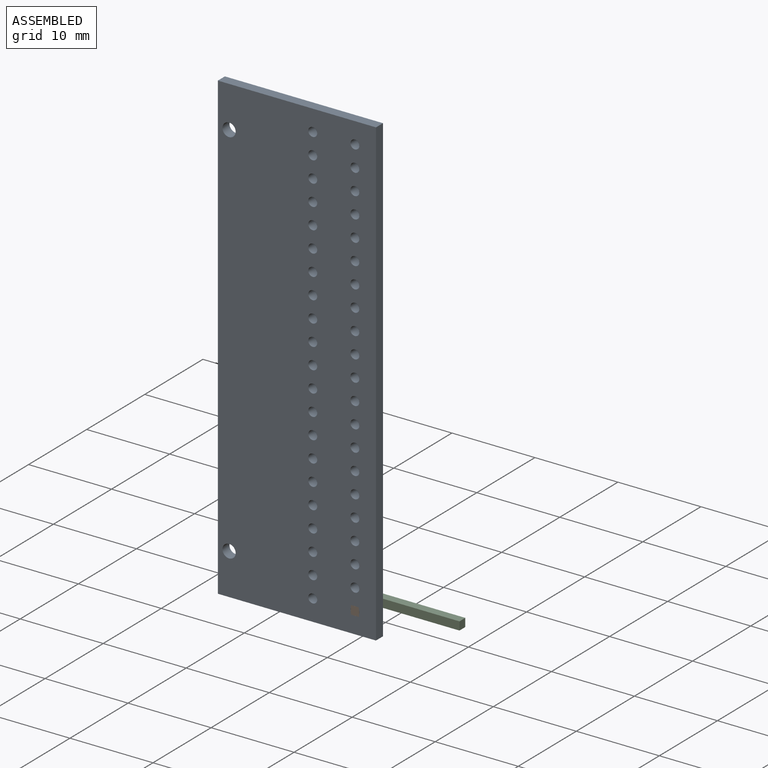
[diagram: assembled view]
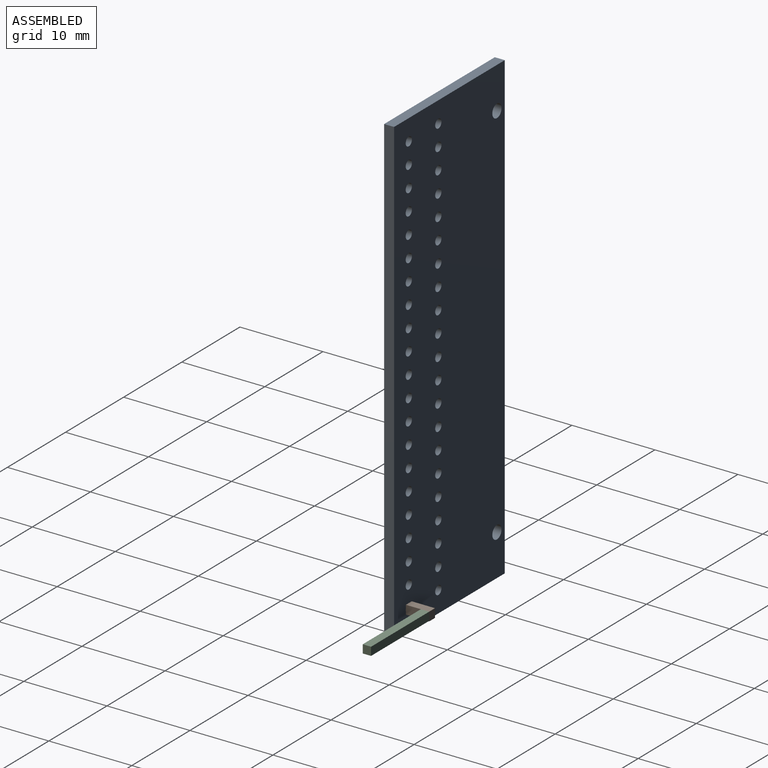
[diagram: assembled view, second angle]
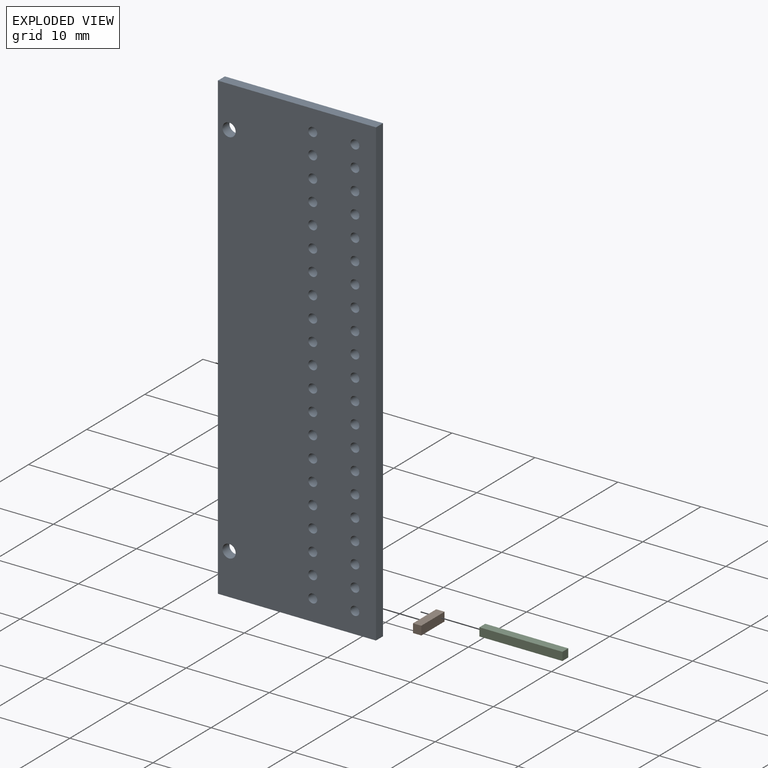
[diagram: exploded view]
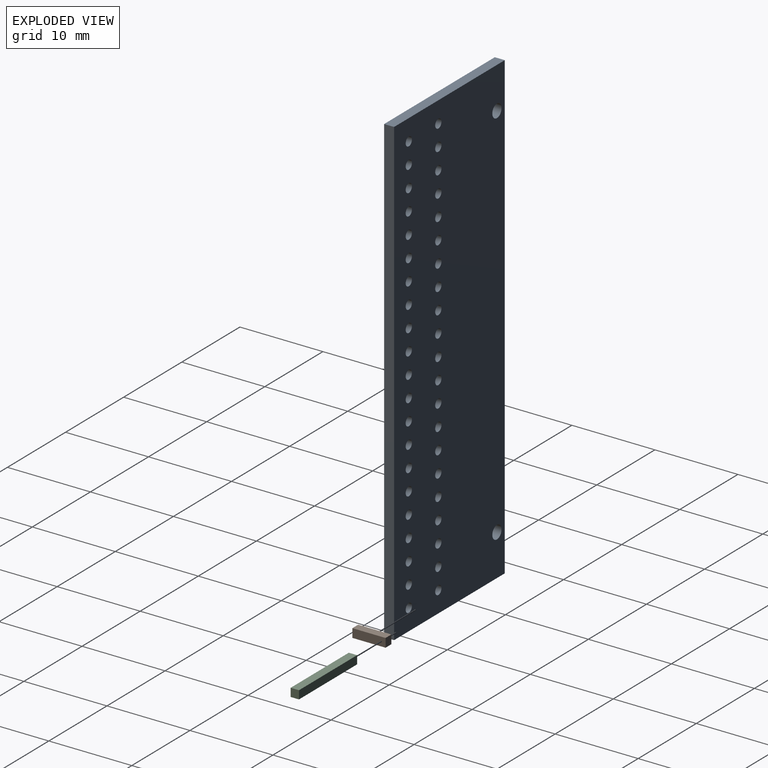
[diagram: exploded view, second angle]
ASSEMBLY  parts=3 mates=2
PART A: 50 faces, bbox 19.1x1.2x55.9 mm
  f0: plane 19.05x1.2mm, normal (0,0,1), area 22.9mm2, adj f1,f14,f48,f49
  f1: plane 55.88x1.2mm, normal (-1,0,0), area 67.1mm2, adj f0,f2,f48,f49
  f2: plane 19.05x1.2mm, normal (0,0,-1), area 22.9mm2, adj f1,f14,f48,f49
  f3: cylinder r=0.54mm len=1.2mm, axis (0,1,0), area 4mm2, adj f48,f49
  f4: cylinder r=0.54mm len=1.2mm, axis (0,1,0), area 4mm2, adj f48,f49
  f5: cylinder r=0.54mm len=1.2mm, axis (0,1,0), area 4mm2, adj f48,f49
  f6: cylinder r=0.54mm len=1.2mm, axis (0,1,0), area 4mm2, adj f48,f49
  f7: cylinder r=0.54mm len=1.2mm, axis (0,1,0), area 4mm2, adj f48,f49
  f8: cylinder r=0.54mm len=1.2mm, axis (0,1,0), area 4mm2, adj f48,f49
  f9: cylinder r=0.54mm len=1.2mm, axis (0,1,0), area 4mm2, adj f48,f49
  f10: cylinder r=0.54mm len=1.2mm, axis (0,1,0), area 4mm2, adj f48,f49
  f11: cylinder r=0.54mm len=1.2mm, axis (0,1,0), area 4mm2, adj f48,f49
  f12: cylinder r=0.54mm len=1.2mm, axis (0,1,0), area 4mm2, adj f48,f49
  f13: cylinder r=0.79mm len=1.59mm, axis (0,1,0), area 6mm2, adj f48,f49
  f14: plane 55.88x1.2mm, normal (1,0,0), area 67.1mm2, adj f0,f2,f48,f49
  f15: cylinder r=0.79mm len=1.59mm, axis (0,1,0), area 6mm2, adj f48,f49
  f16: cylinder r=0.54mm len=1.2mm, axis (0,1,0), area 4mm2, adj f48,f49
  f17: cylinder r=0.54mm len=1.2mm, axis (0,1,0), area 4mm2, adj f48,f49
  f18: cylinder r=0.54mm len=1.2mm, axis (0,1,0), area 4mm2, adj f48,f49
  f19: cylinder r=0.54mm len=1.2mm, axis (0,1,0), area 4mm2, adj f48,f49
  f20: cylinder r=0.54mm len=1.2mm, axis (0,1,0), area 4mm2, adj f48,f49
  f21: cylinder r=0.54mm len=1.2mm, axis (0,1,0), area 4mm2, adj f48,f49
  f22: cylinder r=0.54mm len=1.2mm, axis (0,1,0), area 4mm2, adj f48,f49
  f23: cylinder r=0.54mm len=1.2mm, axis (0,1,0), area 4mm2, adj f48,f49
  f24: cylinder r=0.54mm len=1.2mm, axis (0,1,0), area 4mm2, adj f48,f49
  f25: cylinder r=0.54mm len=1.2mm, axis (0,1,0), area 4mm2, adj f48,f49
  f26: cylinder r=0.54mm len=1.2mm, axis (0,1,0), area 4mm2, adj f48,f49
  f27: cylinder r=0.54mm len=1.2mm, axis (0,1,0), area 4mm2, adj f48,f49
  f28: cylinder r=0.54mm len=1.2mm, axis (0,1,0), area 4mm2, adj f48,f49
  f29: cylinder r=0.54mm len=1.2mm, axis (0,1,0), area 4mm2, adj f48,f49
  f30: cylinder r=0.54mm len=1.2mm, axis (0,1,0), area 4mm2, adj f48,f49
  f31: cylinder r=0.54mm len=1.2mm, axis (0,1,0), area 4mm2, adj f48,f49
  f32: cylinder r=0.54mm len=1.2mm, axis (0,1,0), area 4mm2, adj f48,f49
  f33: cylinder r=0.54mm len=1.2mm, axis (0,1,0), area 4mm2, adj f48,f49
  f34: cylinder r=0.54mm len=1.2mm, axis (0,1,0), area 4mm2, adj f48,f49
  f35: cylinder r=0.54mm len=1.2mm, axis (0,1,0), area 4mm2, adj f48,f49
  f36: cylinder r=0.54mm len=1.2mm, axis (0,1,0), area 4mm2, adj f48,f49
  f37: cylinder r=0.54mm len=1.2mm, axis (0,1,0), area 4mm2, adj f48,f49
  f38: cylinder r=0.54mm len=1.2mm, axis (0,1,0), area 4mm2, adj f48,f49
  f39: cylinder r=0.54mm len=1.2mm, axis (0,1,0), area 4mm2, adj f48,f49
  f40: cylinder r=0.54mm len=1.2mm, axis (0,1,0), area 4mm2, adj f48,f49
  f41: cylinder r=0.54mm len=1.2mm, axis (0,1,0), area 4mm2, adj f48,f49
  f42: cylinder r=0.54mm len=1.2mm, axis (0,1,0), area 4mm2, adj f48,f49
  f43: cylinder r=0.54mm len=1.2mm, axis (0,1,0), area 4mm2, adj f48,f49
  f44: cylinder r=0.54mm len=1.2mm, axis (0,1,0), area 4mm2, adj f48,f49
  f45: cylinder r=0.54mm len=1.2mm, axis (0,1,0), area 4mm2, adj f48,f49
  f46: cylinder r=0.54mm len=1.2mm, axis (0,1,0), area 4mm2, adj f48,f49
  f47: cylinder r=0.54mm len=1.2mm, axis (0,1,0), area 4mm2, adj f48,f49
  f48: plane 55.88x19.05mm, normal (0,-1,0), area 1022.6mm2, adj f0,f1,f2,f3,f4,f5,f6,f7
  f49: plane 55.88x19.05mm, normal (0,1,0), area 1022.6mm2, adj f0,f1,f2,f3,f4,f5,f6,f7
PART B: 6 faces, bbox 1x1.1x4 mm
  f0: plane 4x1mm, normal (0,-1,0), area 4mm2, adj f1,f3,f4,f5
  f1: plane 4x1.06mm, normal (1,0,0), area 4.2mm2, adj f0,f2,f4,f5
  f2: plane 4x1mm, normal (0,1,0), area 4mm2, adj f1,f3,f4,f5
  f3: plane 4x1.06mm, normal (-1,0,0), area 4.2mm2, adj f0,f2,f4,f5
  f4: plane 1.06x1mm, normal (0,0,1), area 1.1mm2, adj f0,f1,f2,f3
  f5: plane 1.06x1mm, normal (0,0,-1), area 1.1mm2, adj f0,f1,f2,f3
PART C: 6 faces, bbox 1x10x1 mm
  f0: plane 10x1mm, normal (0,0,-1), area 10mm2, adj f1,f3,f4,f5
  f1: plane 10x1mm, normal (1,0,0), area 10mm2, adj f0,f2,f4,f5
  f2: plane 10x1mm, normal (0,0,1), area 10mm2, adj f1,f3,f4,f5
  f3: plane 10x1mm, normal (-1,0,0), area 10mm2, adj f0,f2,f4,f5
  f4: plane 1x1mm, normal (0,-1,0), area 1mm2, adj f0,f1,f2,f3
  f5: plane 1x1mm, normal (0,1,0), area 1mm2, adj f0,f1,f2,f3
PLACE A t=(-9.89,5.56,2.64)mm
PLACE B rot(axis=(0,-0.71,-0.71),180deg) t=(0.27,4.36,5.18)mm
PLACE C rot(axis=(-0.71,-0.71,0),180deg) t=(10.77,7.86,5.21)mm
MATE fastened B.f5 <-> A.f23  axis (0,-1,0) through (0.27,4.36,5.18)mm
MATE fastened B.f3 <-> C.f4  axis (1,0,0) through (0.77,8.36,5.71)mm
